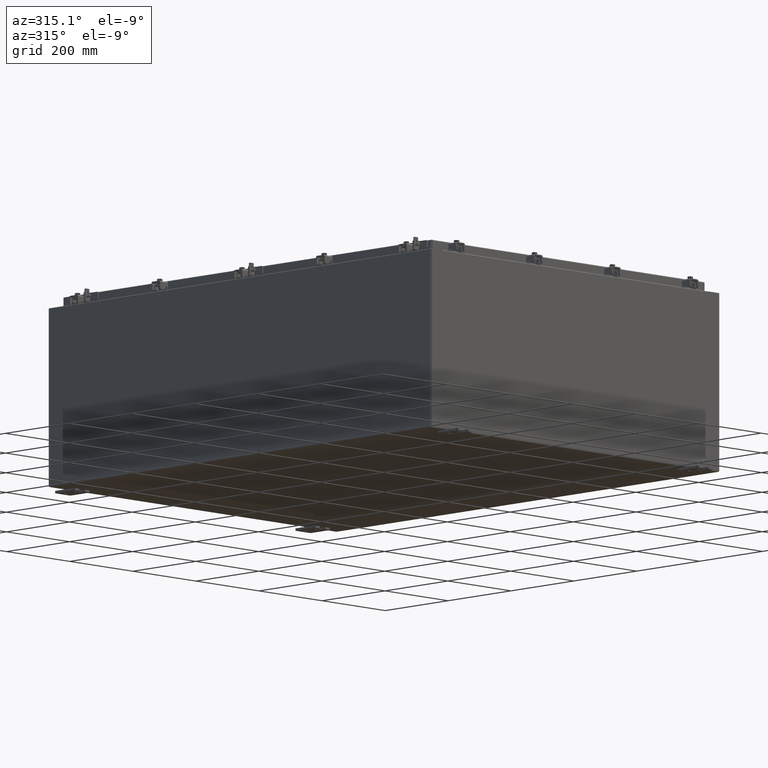
[diagram: clean part render]
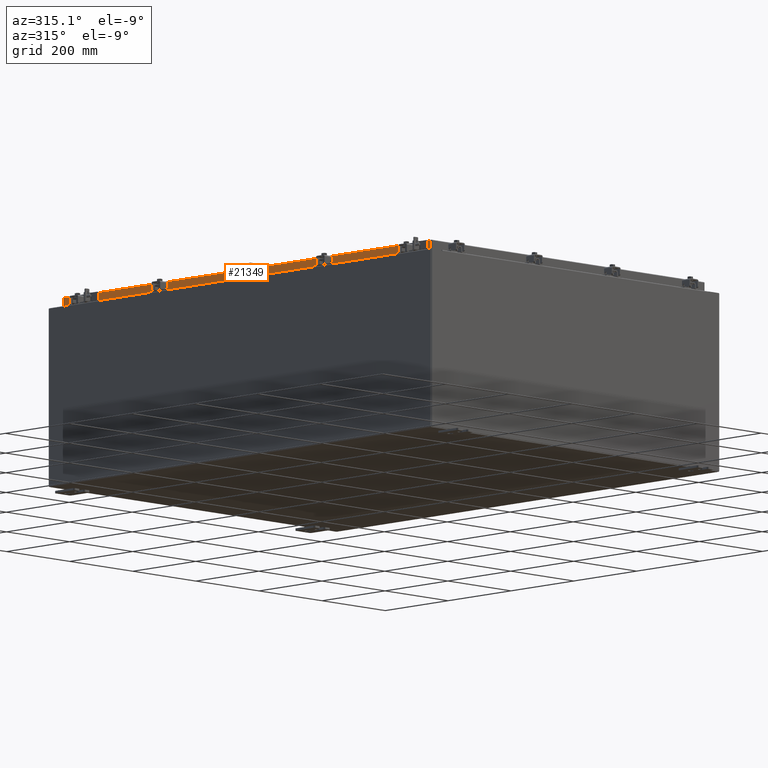
[diagram: same view with one face highlighted and labeled with its STEP entity id]
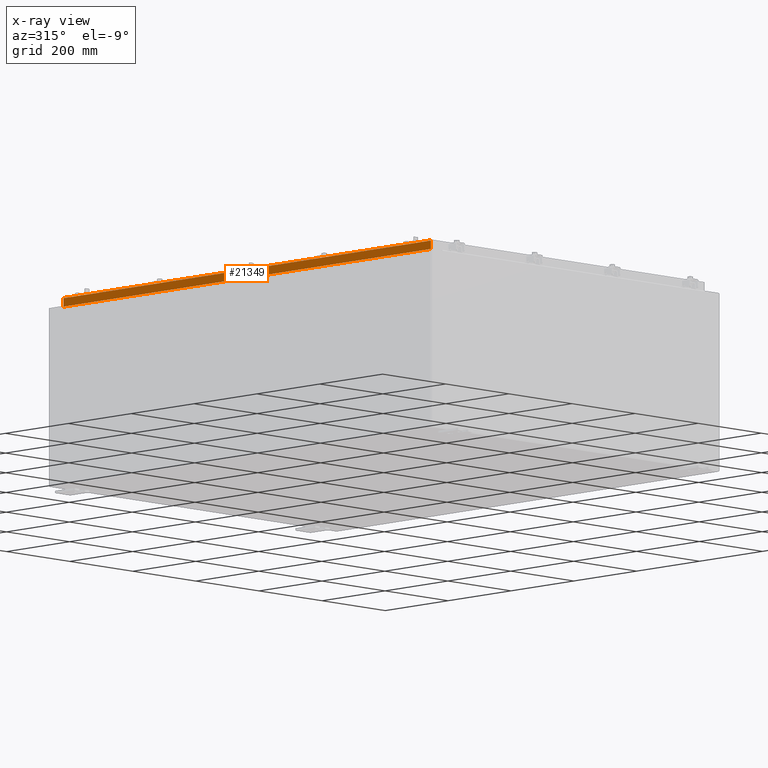
[diagram: x-ray of the same camera — body ghosted, the highlighted face saturated]
A machine part, auxiliary view. The second image highlights one B-rep face of the part: STEP entity #21349.
The next image is the same camera in x-ray: the body ghosted, the highlighted face saturated — about 0% of this face is hidden behind the body in this view.
In plain terms, the highlighted planar face has unit normal (1, 0, -0).
Its self-contained STEP definition (entity closure, byte-faithful):
#968 = CARTESIAN_POINT ( 'NONE',  ( -17.07799999999998900, -22.25515786437625500, -0.8500000000000020900 ) ) ;
#1085 = VECTOR ( 'NONE', #16231, 39.37007874015748100 ) ;
#1639 = ORIENTED_EDGE ( 'NONE', *, *, #9155, .F. ) ;
#2800 = VECTOR ( 'NONE', #10718, 39.37007874015748100 ) ;
#3629 = LINE ( 'NONE', #27007, #25364 ) ;
#4061 = VECTOR ( 'NONE', #24162, 39.37007874015748100 ) ;
#4067 = VERTEX_POINT ( 'NONE', #11940 ) ;
#4134 = VERTEX_POINT ( 'NONE', #16342 ) ;
#4265 = CARTESIAN_POINT ( 'NONE',  ( -17.07799999999999900, 23.00515786437626200, -0.08770000000000026400 ) ) ;
#5389 = FACE_OUTER_BOUND ( 'NONE', #14837, .T. ) ;
#5630 = PLANE ( 'NONE',  #13145 ) ;
#5750 = VERTEX_POINT ( 'NONE', #18847 ) ;
#7087 = DIRECTION ( 'NONE',  ( -2.818880942772360100E-015, 6.982962677686265900E-015, -1.000000000000000000 ) ) ;
#7744 = DIRECTION ( 'NONE',  ( -2.818880942772360100E-015, 0.0000000000000000000, -1.000000000000000000 ) ) ;
#7859 = CARTESIAN_POINT ( 'NONE',  ( -17.07800000000000300, -23.09399999999999400, -0.8499999999999999800 ) ) ;
#7974 = LINE ( 'NONE', #21815, #23451 ) ;
#9155 = EDGE_CURVE ( 'NONE', #5750, #4067, #13997, .T. ) ;
#9658 = LINE ( 'NONE', #968, #4061 ) ;
#9724 = DIRECTION ( 'NONE',  ( -2.818880942772360100E-015, 6.982962677686265900E-015, -1.000000000000000000 ) ) ;
#10129 = EDGE_CURVE ( 'NONE', #24063, #4134, #17250, .T. ) ;
#10710 = EDGE_CURVE ( 'NONE', #12697, #4134, #17221, .T. ) ;
#10718 = DIRECTION ( 'NONE',  ( -4.379057701015054300E-047, 1.000000000000000000, 1.212498568245375500E-016 ) ) ;
#11880 = CARTESIAN_POINT ( 'NONE',  ( -17.07799999999999900, 0.0000000000000000000, 4.808052468849102900E-014 ) ) ;
#11940 = CARTESIAN_POINT ( 'NONE',  ( -17.07799999999998900, -22.25515786437626200, -0.8500000000000020900 ) ) ;
#11946 = ORIENTED_EDGE ( 'NONE', *, *, #10710, .F. ) ;
#12150 = EDGE_CURVE ( 'NONE', #24063, #15937, #3629, .T. ) ;
#12697 = VERTEX_POINT ( 'NONE', #18242 ) ;
#13145 = AXIS2_PLACEMENT_3D ( 'NONE', #11880, #20353, #7744 ) ;
#13997 = LINE ( 'NONE', #26981, #2800 ) ;
#14837 = EDGE_LOOP ( 'NONE', ( #17646, #15671, #11946, #19367, #1639, #23108 ) ) ;
#15671 = ORIENTED_EDGE ( 'NONE', *, *, #10129, .T. ) ;
#15937 = VERTEX_POINT ( 'NONE', #17243 ) ;
#15979 = CARTESIAN_POINT ( 'NONE',  ( -17.07799999999999900, 23.00515786437626200, 2.076204475184840000E-013 ) ) ;
#16231 = DIRECTION ( 'NONE',  ( -4.379057701015054300E-047, 1.000000000000000000, 1.212498568245375500E-016 ) ) ;
#16342 = CARTESIAN_POINT ( 'NONE',  ( -17.07800000000000300, 23.00515786437626200, -0.8499999999999934300 ) ) ;
#16519 = DIRECTION ( 'NONE',  ( 3.417889107165661600E-031, -1.000000000000000000, -9.316371385484559400E-046 ) ) ;
#17221 = LINE ( 'NONE', #7859, #1085 ) ;
#17243 = CARTESIAN_POINT ( 'NONE',  ( -17.07799999999999900, -23.00515786437626200, -0.08770000000000026400 ) ) ;
#17250 = LINE ( 'NONE', #15979, #22195 ) ;
#17646 = ORIENTED_EDGE ( 'NONE', *, *, #12150, .F. ) ;
#17963 = EDGE_CURVE ( 'NONE', #4067, #12697, #9658, .T. ) ;
#18242 = CARTESIAN_POINT ( 'NONE',  ( -17.07799999999998900, 22.25515786437623700, -0.8500000000000020900 ) ) ;
#18847 = CARTESIAN_POINT ( 'NONE',  ( -17.07800000000000300, -23.00515786437625800, -0.8499999999999999800 ) ) ;
#19367 = ORIENTED_EDGE ( 'NONE', *, *, #17963, .F. ) ;
#19828 = EDGE_CURVE ( 'NONE', #15937, #5750, #7974, .T. ) ;
#20353 = DIRECTION ( 'NONE',  ( 1.000000000000000000, 3.417889107165661600E-031, -2.818880942772360100E-015 ) ) ;
#21349 = ADVANCED_FACE ( 'NONE', ( #5389 ), #5630, .F. ) ;
#21815 = CARTESIAN_POINT ( 'NONE',  ( -17.07799999999999900, -23.00515786437626200, -0.07470000000000015500 ) ) ;
#22195 = VECTOR ( 'NONE', #9724, 39.37007874015748100 ) ;
#23108 = ORIENTED_EDGE ( 'NONE', *, *, #19828, .F. ) ;
#23451 = VECTOR ( 'NONE', #7087, 39.37007874015748100 ) ;
#24063 = VERTEX_POINT ( 'NONE', #4265 ) ;
#24162 = DIRECTION ( 'NONE',  ( -0.0000000000000000000, 1.000000000000000000, -0.0000000000000000000 ) ) ;
#25364 = VECTOR ( 'NONE', #16519, 39.37007874015748100 ) ;
#26981 = CARTESIAN_POINT ( 'NONE',  ( -17.07800000000000300, -23.09399999999999400, -0.8499999999999999800 ) ) ;
#27007 = CARTESIAN_POINT ( 'NONE',  ( -17.07799999999999900, -23.09399999999999400, -0.08770000000000026400 ) ) ;